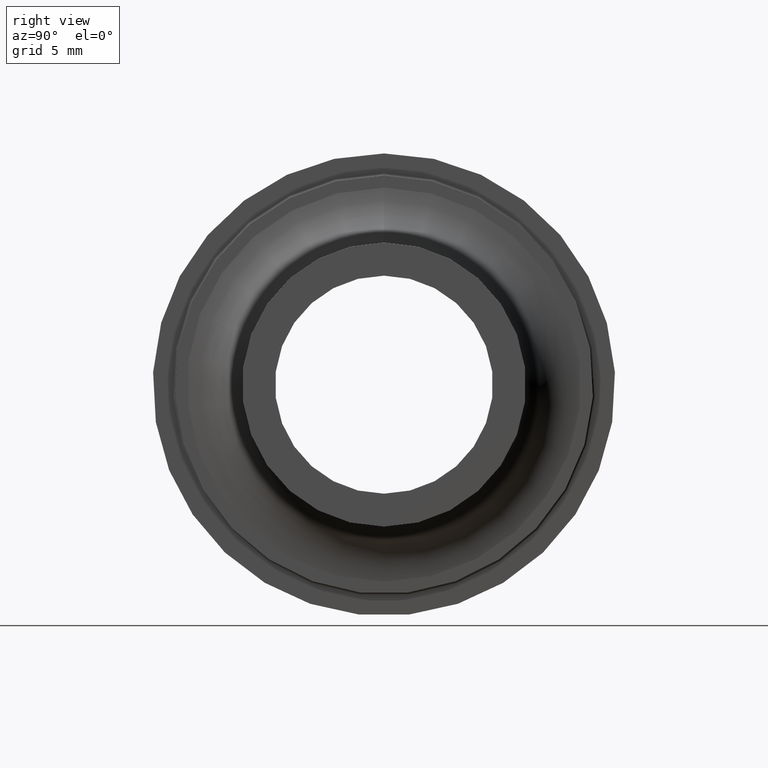
[diagram: clean part render]
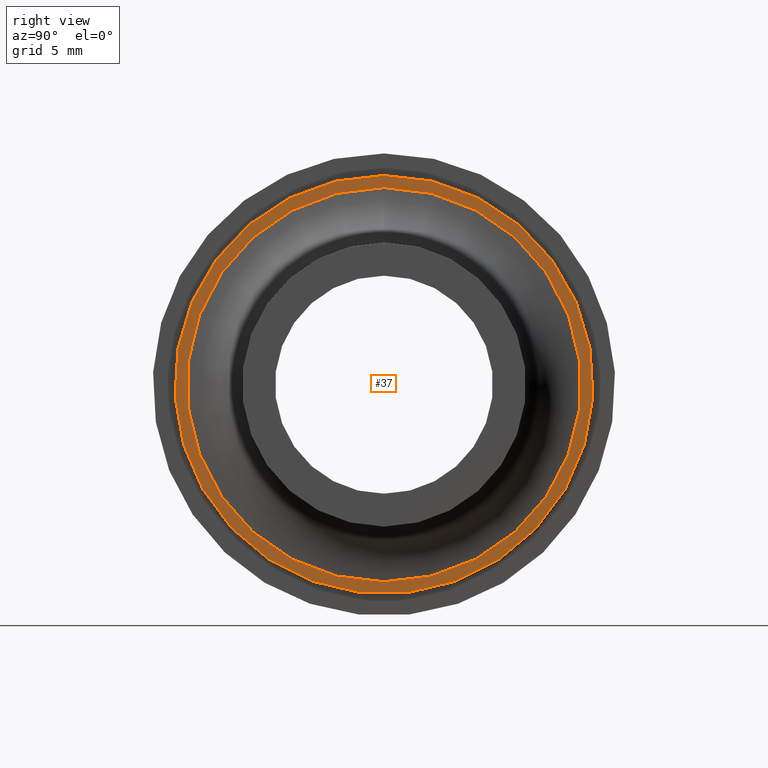
[diagram: same view with one face highlighted and labeled with its STEP entity id]
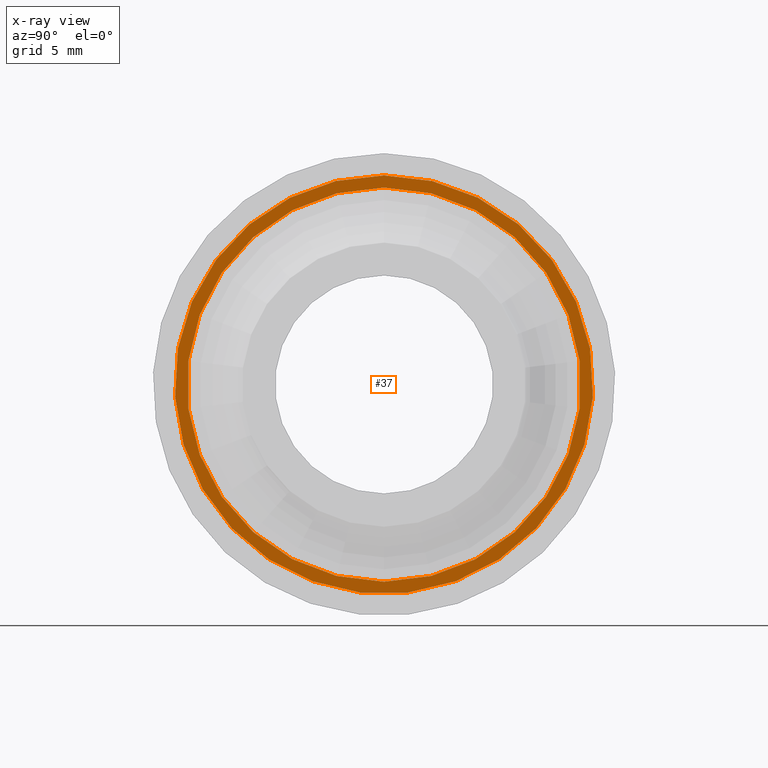
[diagram: x-ray of the same camera — body ghosted, the highlighted face saturated]
A machine part, right view. The second image highlights one B-rep face of the part: STEP entity #37.
The next image is the same camera in x-ray: the body ghosted, the highlighted face saturated — about 0% of this face is hidden behind the body in this view.
In plain terms, the highlighted planar face has unit normal (-1, 0, 0).
Its self-contained STEP definition (entity closure, byte-faithful):
#37 = ADVANCED_FACE( '', ( #80, #81 ), #82, .F. );
#80 = FACE_OUTER_BOUND( '', #139, .T. );
#81 = FACE_BOUND( '', #140, .T. );
#82 = PLANE( '', #141 );
#139 = EDGE_LOOP( '', ( #192 ) );
#140 = EDGE_LOOP( '', ( #193 ) );
#141 = AXIS2_PLACEMENT_3D( '', #194, #195, #196 );
#192 = ORIENTED_EDGE( '', *, *, #270, .F. );
#193 = ORIENTED_EDGE( '', *, *, #271, .T. );
#194 = CARTESIAN_POINT( '', ( 4.00000000000000, 0.000000000000000, 8.95000000000000 ) );
#195 = DIRECTION( '', ( -1.00000000000000, 0.000000000000000, 0.000000000000000 ) );
#196 = DIRECTION( '', ( 0.000000000000000, 0.000000000000000, 1.00000000000000 ) );
#270 = EDGE_CURVE( '', #296, #296, #297, .T. );
#271 = EDGE_CURVE( '', #298, #298, #299, .T. );
#296 = VERTEX_POINT( '', #335 );
#297 = CIRCLE( '', #336, 9.50000000000000 );
#298 = VERTEX_POINT( '', #337 );
#299 = CIRCLE( '', #338, 8.95000000000000 );
#335 = CARTESIAN_POINT( '', ( 4.00000000000000, 0.000000000000000, 9.50000000000000 ) );
#336 = AXIS2_PLACEMENT_3D( '', #373, #374, #375 );
#337 = CARTESIAN_POINT( '', ( 4.00000000000000, 0.000000000000000, 8.95000000000000 ) );
#338 = AXIS2_PLACEMENT_3D( '', #376, #377, #378 );
#373 = CARTESIAN_POINT( '', ( 4.00000000000000, 0.000000000000000, 0.000000000000000 ) );
#374 = DIRECTION( '', ( -1.00000000000000, 0.000000000000000, 0.000000000000000 ) );
#375 = DIRECTION( '', ( 0.000000000000000, 0.000000000000000, 1.00000000000000 ) );
#376 = CARTESIAN_POINT( '', ( 4.00000000000000, 0.000000000000000, 0.000000000000000 ) );
#377 = DIRECTION( '', ( -1.00000000000000, 0.000000000000000, 0.000000000000000 ) );
#378 = DIRECTION( '', ( 0.000000000000000, 0.000000000000000, 1.00000000000000 ) );